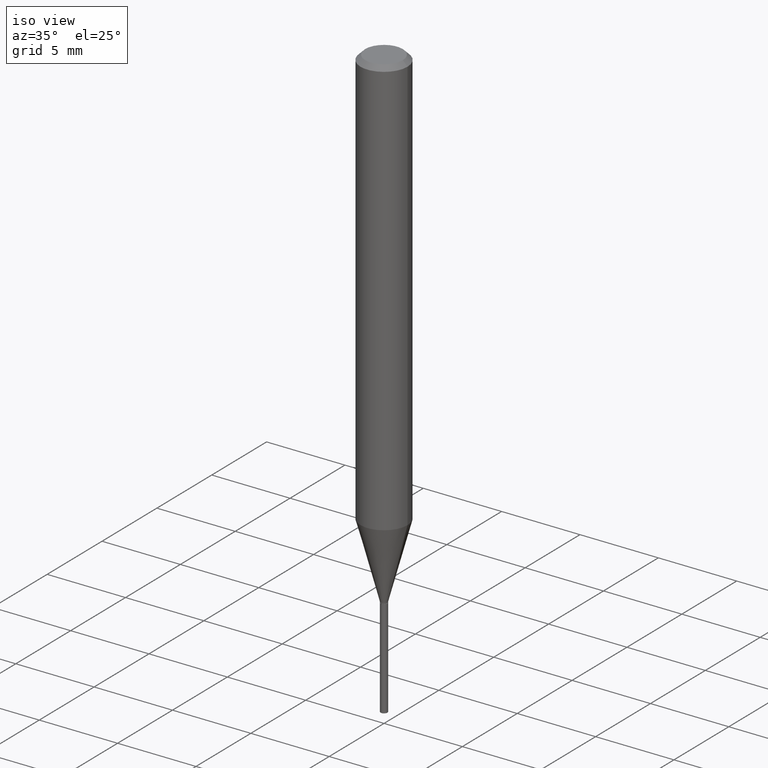
[diagram: clean part render]
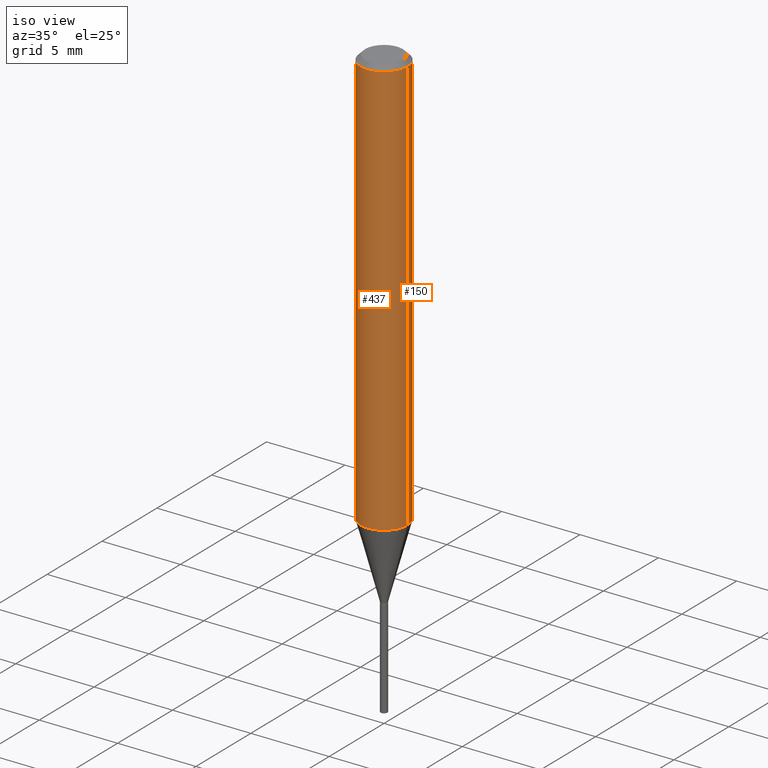
[diagram: same view with one multi-face feature highlighted, each face labeled with its STEP entity id]
A machine part, iso view. The highlighted faces form ONE feature: a constant-radius fillet chain: 2 tangent blend faces with common blend radius 1.4999 mm. The faces share edges in the B-rep.
Their STEP definitions:
[1] entity #150 (Cylinder):
#7 = DIRECTION ( 'NONE',  ( 1.000000000000000000, -6.982962677686266711E-15, 4.876176775795936353E-29 ) ) ;
#9 = CARTESIAN_POINT ( 'NONE',  ( 2.888098660104664204E-31, -4.123439461173780263E-17, -0.01181000000000007218 ) ) ;
#15 = VERTEX_POINT ( 'NONE', #193 ) ;
#48 = DIRECTION ( 'NONE',  ( 1.000000000000000000, -6.982962677686266711E-15, 0.000000000000000000 ) ) ;
#64 = ORIENTED_EDGE ( 'NONE', *, *, #465, .F. ) ;
#68 = DIRECTION ( 'NONE',  ( -2.445468806185136877E-29, 3.491481338843145188E-15, 1.000000000000000000 ) ) ;
#75 = EDGE_CURVE ( 'NONE', #429, #15, #342, .T. ) ;
#78 = CIRCLE ( 'NONE', #440, 0.05904999999999999832 ) ;
#91 = CARTESIAN_POINT ( 'NONE',  ( 0.05904999999999999832, -4.535783407291118600E-16, -0.01181000000000007218 ) ) ;
#97 = ORIENTED_EDGE ( 'NONE', *, *, #116, .T. ) ;
#111 = DIRECTION ( 'NONE',  ( 1.000000000000000000, -6.982962677686264344E-15, 0.000000000000000000 ) ) ;
#116 = EDGE_CURVE ( 'NONE', #15, #296, #166, .T. ) ;
#150 = ADVANCED_FACE ( 'NONE', ( #391 ), #280, .T. ) ;
#166 = LINE ( 'NONE', #352, #319 ) ;
#168 = CARTESIAN_POINT ( 'NONE',  ( 0.000000000000000000, 0.000000000000000000, 0.000000000000000000 ) ) ;
#173 = EDGE_CURVE ( 'NONE', #328, #296, #78, .T. ) ;
#193 = CARTESIAN_POINT ( 'NONE',  ( -0.05905000000000013710, -3.256110225879102579E-15, -1.052758229137014556 ) ) ;
#215 = EDGE_LOOP ( 'NONE', ( #439, #97, #372, #64 ) ) ;
#221 = CARTESIAN_POINT ( 'NONE',  ( 0.05905000000000006771, -4.123439461173745257E-16, 2.879382386107503723E-30 ) ) ;
#228 = LINE ( 'NONE', #221, #395 ) ;
#234 = DIRECTION ( 'NONE',  ( -2.445468806185136877E-29, 3.491481338843145188E-15, 1.000000000000000000 ) ) ;
#277 = AXIS2_PLACEMENT_3D ( 'NONE', #168, #389, #7 ) ;
#280 = CYLINDRICAL_SURFACE ( 'NONE', #277, 0.05905000000000006771 ) ;
#289 = CARTESIAN_POINT ( 'NONE',  ( -0.05904999999999999832, -1.438884567512250013E-15, -0.01181000000000007218 ) ) ;
#296 = VERTEX_POINT ( 'NONE', #289 ) ;
#300 = DIRECTION ( 'NONE',  ( -2.445468806185136597E-29, 3.491481338843145583E-15, 1.000000000000000000 ) ) ;
#319 = VECTOR ( 'NONE', #234, 39.37007874015748143 ) ;
#328 = VERTEX_POINT ( 'NONE', #91 ) ;
#337 = CARTESIAN_POINT ( 'NONE',  ( 2.574487409809273648E-29, -3.675685711345442861E-15, -1.052758229137014556 ) ) ;
#342 = CIRCLE ( 'NONE', #388, 0.05905000000000013710 ) ;
#352 = CARTESIAN_POINT ( 'NONE',  ( -0.05905000000000006771, 4.195754854663396409E-16, -2.904631170795525045E-30 ) ) ;
#372 = ORIENTED_EDGE ( 'NONE', *, *, #173, .F. ) ;
#387 = DIRECTION ( 'NONE',  ( -2.445468806185136597E-29, 3.491481338843145583E-15, 1.000000000000000000 ) ) ;
#388 = AXIS2_PLACEMENT_3D ( 'NONE', #337, #300, #111 ) ;
#389 = DIRECTION ( 'NONE',  ( -2.445468806185136597E-29, 3.491481338843145583E-15, 1.000000000000000000 ) ) ;
#391 = FACE_OUTER_BOUND ( 'NONE', #215, .T. ) ;
#394 = CARTESIAN_POINT ( 'NONE',  ( 0.05905000000000013710, -4.088029657462817781E-15, -1.052758229137014556 ) ) ;
#395 = VECTOR ( 'NONE', #68, 39.37007874015748143 ) ;
#429 = VERTEX_POINT ( 'NONE', #394 ) ;
#439 = ORIENTED_EDGE ( 'NONE', *, *, #75, .T. ) ;
#440 = AXIS2_PLACEMENT_3D ( 'NONE', #9, #387, #48 ) ;
#465 = EDGE_CURVE ( 'NONE', #429, #328, #228, .T. ) ;
[2] entity #437 (Cylinder):
#5 = CIRCLE ( 'NONE', #216, 0.05905000000000013710 ) ;
#6 = DIRECTION ( 'NONE',  ( 1.000000000000000000, -6.982962677686266711E-15, 0.000000000000000000 ) ) ;
#15 = VERTEX_POINT ( 'NONE', #193 ) ;
#17 = ORIENTED_EDGE ( 'NONE', *, *, #116, .F. ) ;
#57 = ORIENTED_EDGE ( 'NONE', *, *, #250, .F. ) ;
#68 = DIRECTION ( 'NONE',  ( -2.445468806185136877E-29, 3.491481338843145188E-15, 1.000000000000000000 ) ) ;
#70 = AXIS2_PLACEMENT_3D ( 'NONE', #476, #322, #176 ) ;
#90 = ORIENTED_EDGE ( 'NONE', *, *, #465, .T. ) ;
#91 = CARTESIAN_POINT ( 'NONE',  ( 0.05904999999999999832, -4.535783407291118600E-16, -0.01181000000000007218 ) ) ;
#104 = DIRECTION ( 'NONE',  ( -2.445468806185136597E-29, 3.491481338843145583E-15, 1.000000000000000000 ) ) ;
#116 = EDGE_CURVE ( 'NONE', #15, #296, #166, .T. ) ;
#145 = ORIENTED_EDGE ( 'NONE', *, *, #309, .T. ) ;
#166 = LINE ( 'NONE', #352, #319 ) ;
#176 = DIRECTION ( 'NONE',  ( 1.000000000000000000, -6.982962677686266711E-15, 4.876176775795936353E-29 ) ) ;
#183 = DIRECTION ( 'NONE',  ( 1.000000000000000000, -6.982962677686264344E-15, 0.000000000000000000 ) ) ;
#193 = CARTESIAN_POINT ( 'NONE',  ( -0.05905000000000013710, -3.256110225879102579E-15, -1.052758229137014556 ) ) ;
#200 = CARTESIAN_POINT ( 'NONE',  ( 2.888098660104664204E-31, -4.123439461173780263E-17, -0.01181000000000007218 ) ) ;
#210 = CYLINDRICAL_SURFACE ( 'NONE', #70, 0.05905000000000006771 ) ;
#212 = FACE_OUTER_BOUND ( 'NONE', #442, .T. ) ;
#216 = AXIS2_PLACEMENT_3D ( 'NONE', #468, #104, #183 ) ;
#221 = CARTESIAN_POINT ( 'NONE',  ( 0.05905000000000006771, -4.123439461173745257E-16, 2.879382386107503723E-30 ) ) ;
#228 = LINE ( 'NONE', #221, #395 ) ;
#234 = DIRECTION ( 'NONE',  ( -2.445468806185136877E-29, 3.491481338843145188E-15, 1.000000000000000000 ) ) ;
#250 = EDGE_CURVE ( 'NONE', #296, #328, #373, .T. ) ;
#289 = CARTESIAN_POINT ( 'NONE',  ( -0.05904999999999999832, -1.438884567512250013E-15, -0.01181000000000007218 ) ) ;
#296 = VERTEX_POINT ( 'NONE', #289 ) ;
#309 = EDGE_CURVE ( 'NONE', #15, #429, #5, .T. ) ;
#319 = VECTOR ( 'NONE', #234, 39.37007874015748143 ) ;
#322 = DIRECTION ( 'NONE',  ( -2.445468806185136597E-29, 3.491481338843145583E-15, 1.000000000000000000 ) ) ;
#328 = VERTEX_POINT ( 'NONE', #91 ) ;
#352 = CARTESIAN_POINT ( 'NONE',  ( -0.05905000000000006771, 4.195754854663396409E-16, -2.904631170795525045E-30 ) ) ;
#373 = CIRCLE ( 'NONE', #390, 0.05904999999999999832 ) ;
#385 = DIRECTION ( 'NONE',  ( -2.445468806185136597E-29, 3.491481338843145583E-15, 1.000000000000000000 ) ) ;
#390 = AXIS2_PLACEMENT_3D ( 'NONE', #200, #385, #6 ) ;
#394 = CARTESIAN_POINT ( 'NONE',  ( 0.05905000000000013710, -4.088029657462817781E-15, -1.052758229137014556 ) ) ;
#395 = VECTOR ( 'NONE', #68, 39.37007874015748143 ) ;
#429 = VERTEX_POINT ( 'NONE', #394 ) ;
#437 = ADVANCED_FACE ( 'NONE', ( #212 ), #210, .T. ) ;
#442 = EDGE_LOOP ( 'NONE', ( #17, #145, #90, #57 ) ) ;
#465 = EDGE_CURVE ( 'NONE', #429, #328, #228, .T. ) ;
#468 = CARTESIAN_POINT ( 'NONE',  ( 2.574487409809273648E-29, -3.675685711345442861E-15, -1.052758229137014556 ) ) ;
#476 = CARTESIAN_POINT ( 'NONE',  ( 0.000000000000000000, 0.000000000000000000, 0.000000000000000000 ) ) ;